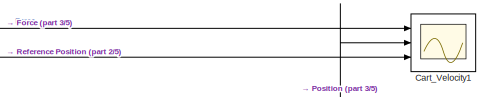
[diagram: root canvas - part 1/5, top right region]
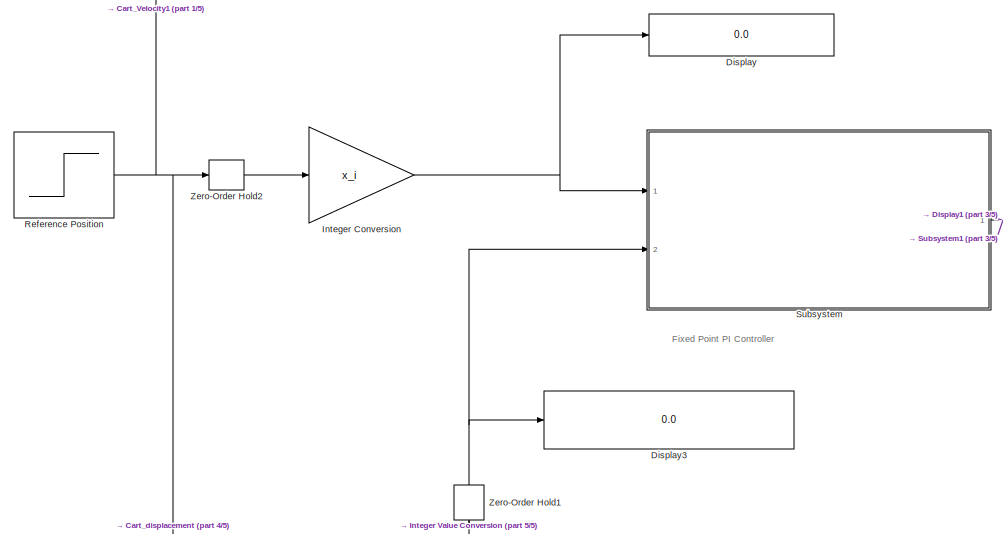
[diagram: root canvas - part 2/5, top left region]
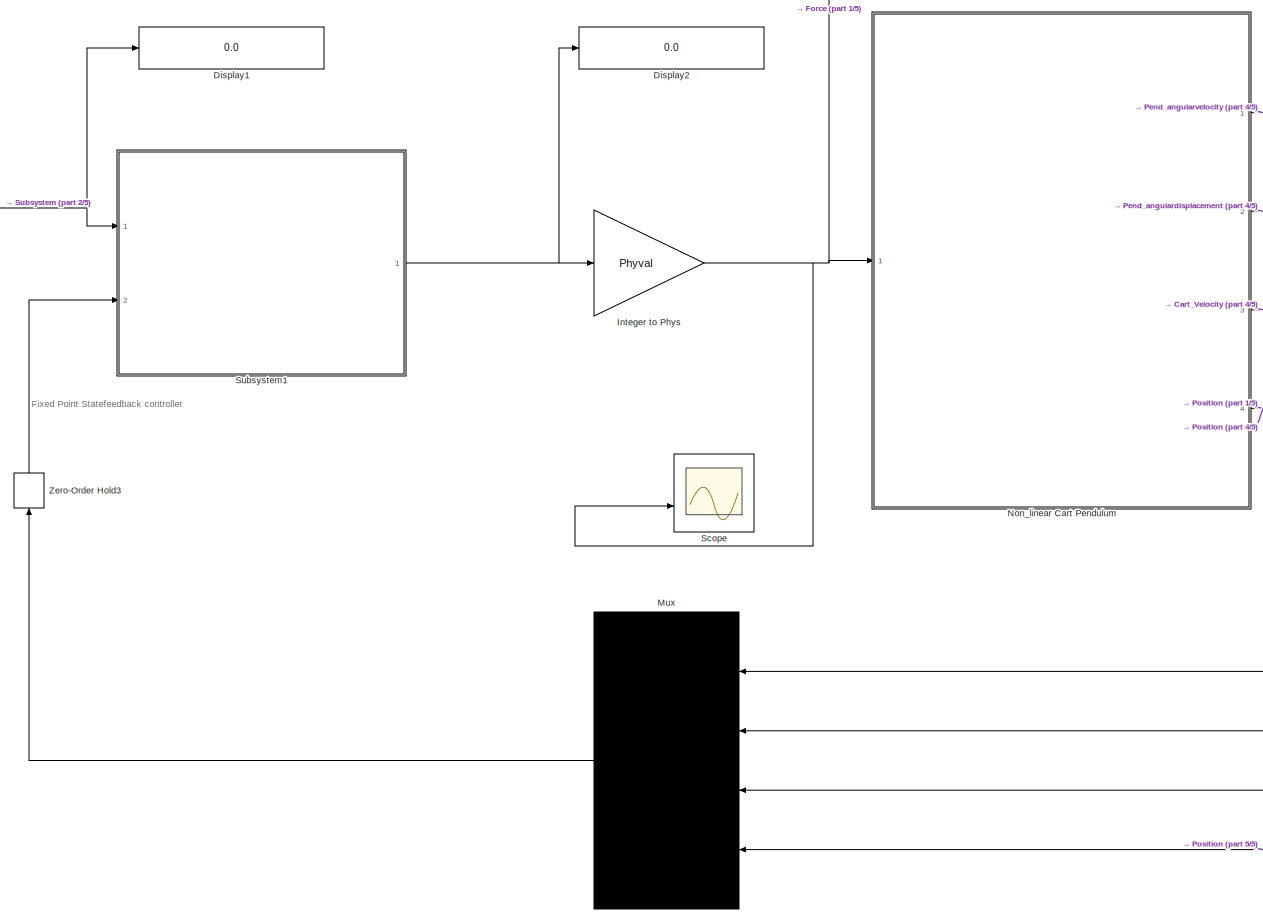
[diagram: root canvas - part 3/5, central region]
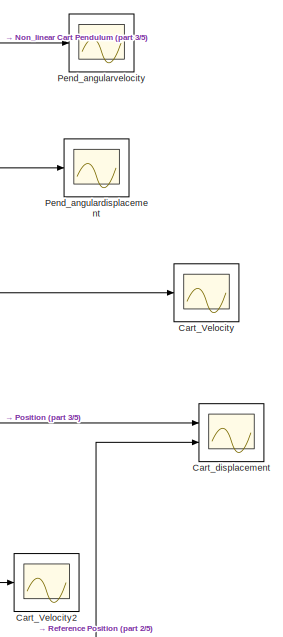
[diagram: root canvas - part 4/5, middle right region]
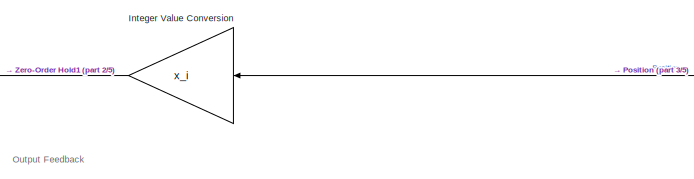
[diagram: root canvas - part 5/5, bottom center region]
MODEL slx_2f15d49a30e4
KIND model
CONFIG AbsTol = auto
CONFIG EnableMultiTasking = off
CONFIG FixedStep = auto
CONFIG MaxStep = 0.01
CONFIG MinStep = auto
CONFIG RelTol = 1e-3
CONFIG SampleTimeConstraint = Unconstrained
CONFIG Solver = VariableStepAuto
CONFIG SolverName = VariableStepAuto
CONFIG StartTime = 0.0
CONFIG StopTime = 30
BLOCK [Scope] Cart_Velocity
  Floating = off
  NumInputPorts = 1
  Ports = [1]
  ScopeSpecificationString = Simulink.scopes.TimeScopeBlockCfg('CurrentConfiguration', extmgr.ConfigurationSet(extmgr.Configuration('Core','General UI',true),extmgr.Configuration('Core','Source UI',true),extmgr.Configuration('Sources','WiredSimulink',true,'DataLoggingVariableName','ScopeData2'),extmgr.Configuration('Visuals','Time Domain',true,'SerializedDisplays',{struct('MinYLimReal','-0.08538','MaxYLimReal','0.70815','YLab...<+1443ch>
BLOCK [Scope] Cart_Velocity1
  Floating = off
  NumInputPorts = 3
  Ports = [3]
  ScopeSpecificationString = Simulink.scopes.TimeScopeBlockCfg('CurrentConfiguration', extmgr.ConfigurationSet(extmgr.Configuration('Core','General UI',true,'FigureColor',[1 1 1]),extmgr.Configuration('Core','Source UI',true),extmgr.Configuration('Sources','WiredSimulink',true,'DataLoggingVariableName','ScopeData1'),extmgr.Configuration('Visuals','Time Domain',true,'SerializedDisplays',{struct('MinYLimReal','0.93901','MaxYLim...<+1906ch>
BLOCK [Scope] Cart_Velocity2
  Floating = off
  NumInputPorts = 1
  Ports = [1]
  ScopeSpecificationString = Simulink.scopes.TimeScopeBlockCfg('CurrentConfiguration', extmgr.ConfigurationSet(extmgr.Configuration('Core','General UI',true),extmgr.Configuration('Core','Source UI',true),extmgr.Configuration('Sources','WiredSimulink',true,'DataLoggingVariableName','ScopeData1'),extmgr.Configuration('Visuals','Time Domain',true,'SerializedDisplays',{struct('MinYLimReal','0.99687','MaxYLimReal','1.01302','YLabe...<+1465ch>
BLOCK [Scope] Cart_displacement
  Floating = off
  NumInputPorts = 2
  Ports = [2]
  ScopeSpecificationString = Simulink.scopes.TimeScopeBlockCfg('CurrentConfiguration', extmgr.ConfigurationSet(extmgr.Configuration('Core','General UI',true,'FigureColor',[1 1 1]),extmgr.Configuration('Core','Source UI',true),extmgr.Configuration('Sources','WiredSimulink',true,'DataLoggingVariableName','ScopeData3'),extmgr.Configuration('Visuals','Time Domain',true,'SerializedDisplays',{struct('MinYLimReal','-0.12529','MaxYLi...<+2018ch>
BLOCK [Display] Display
  Decimation = 1
  Format = long
  Ports = [1]
BLOCK [Display] Display1
  Decimation = 1
  Format = long
  Ports = [1]
BLOCK [Display] Display2
  Decimation = 1
  Ports = [1]
BLOCK [Display] Display3
  Decimation = 1
  Format = long
  Ports = [1]
BLOCK [Gain] Integer Conversion
  Gain = x_i
  OutDataTypeStr = fixdt(1,16,0)
  ParamDataTypeStr = fixdt(1,16,0)
  SaturateOnIntegerOverflow = off
BLOCK [Gain] Integer Value Conversion
  Gain = x_i
  OutDataTypeStr = int16
  ParamDataTypeStr = int16
  SaturateOnIntegerOverflow = off
BLOCK [Gain] Integer to Phys
  Gain = Phyval
  OutDataTypeStr = fixdt(1,32,9)
  ParamDataTypeStr = fixdt(1,32,9)
  SaturateOnIntegerOverflow = off
BLOCK [Mux] Mux
  DisplayOption = signals
  Ports = [4, 1]
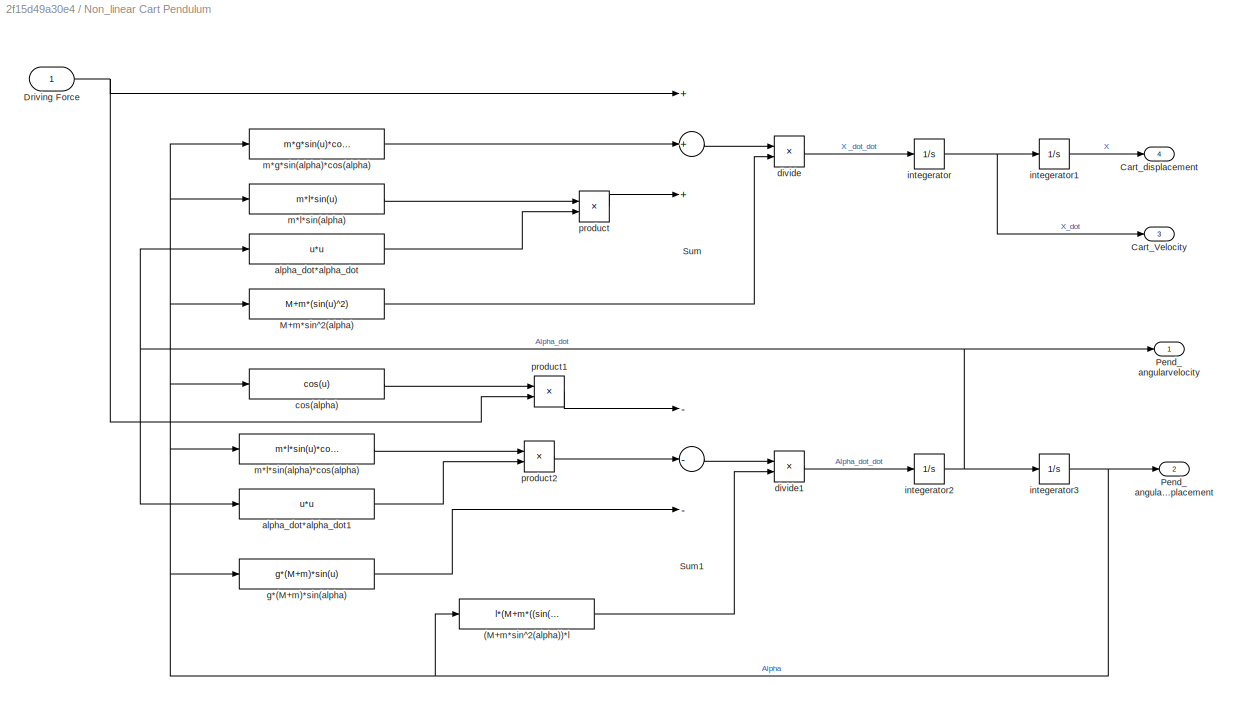
BLOCK [SubSystem] Non_linear Cart Pendulum
  Ports = [1, 4]
  RequestExecContextInheritance = off
BLOCK [Outport] Non_linear Cart Pendulum/                   Pend_angulardisplacement
  IconDisplay = Port number
  Port = 2
BLOCK [Outport] Non_linear Cart Pendulum/                   Pend_angularvelocity
  IconDisplay = Port number
BLOCK [Fcn] Non_linear Cart Pendulum/(M+m*sin^2(alpha))*l
  Expr = l*(M+m*((sin(u))^2))
BLOCK [Outport] Non_linear Cart Pendulum/Cart_Velocity
  IconDisplay = Port number
  Port = 3
BLOCK [Outport] Non_linear Cart Pendulum/Cart_displacement
  IconDisplay = Port number
  Port = 4
BLOCK [Inport] Non_linear Cart Pendulum/Driving Force
  IconDisplay = Port number
BLOCK [Fcn] Non_linear Cart Pendulum/M+m*sin^2(alpha)
  Expr = M+m*(sin(u)^2)
BLOCK [Sum] Non_linear Cart Pendulum/Sum
  InputSameDT = off
  Inputs = +++
  OutDataTypeStr = Inherit: Inherit via internal rule
  Ports = [3, 1]
  SaturateOnIntegerOverflow = off
BLOCK [Sum] Non_linear Cart Pendulum/Sum1
  InputSameDT = off
  Inputs = ---
  OutDataTypeStr = Inherit: Inherit via internal rule
  Ports = [3, 1]
  SaturateOnIntegerOverflow = off
BLOCK [Fcn] Non_linear Cart Pendulum/alpha_dot*alpha_dot
  Expr = u*u
BLOCK [Fcn] Non_linear Cart Pendulum/alpha_dot*alpha_dot1
  Expr = u*u
BLOCK [Fcn] Non_linear Cart Pendulum/cos(alpha)
  Expr = cos(u)
BLOCK [Product] Non_linear Cart Pendulum/divide
  InputSameDT = off
  Inputs = */
  OutDataTypeStr = Inherit: Inherit via internal rule
  Ports = [2, 1]
  RndMeth = Floor
  SaturateOnIntegerOverflow = off
BLOCK [Product] Non_linear Cart Pendulum/divide1
  InputSameDT = off
  Inputs = */
  OutDataTypeStr = Inherit: Inherit via internal rule
  Ports = [2, 1]
  RndMeth = Floor
  SaturateOnIntegerOverflow = off
BLOCK [Fcn] Non_linear Cart Pendulum/g*(M+m)*sin(alpha)
  Expr = g*(M+m)*sin(u)
BLOCK [Integrator] Non_linear Cart Pendulum/integerator
  Ports = [1, 1]
BLOCK [Integrator] Non_linear Cart Pendulum/integerator1
  Ports = [1, 1]
BLOCK [Integrator] Non_linear Cart Pendulum/integerator2
  Ports = [1, 1]
BLOCK [Integrator] Non_linear Cart Pendulum/integerator3
  Ports = [1, 1]
BLOCK [Fcn] Non_linear Cart Pendulum/m*g*sin(alpha)*cos(alpha)
  Expr = m*g*sin(u)*cos(u)
BLOCK [Fcn] Non_linear Cart Pendulum/m*l*sin(alpha)
  Expr = m*l*sin(u)
BLOCK [Fcn] Non_linear Cart Pendulum/m*l*sin(alpha)*cos(alpha)
  Expr = m*l*sin(u)*cos(u)
BLOCK [Product] Non_linear Cart Pendulum/product
  InputSameDT = off
  OutDataTypeStr = Inherit: Inherit via internal rule
  Ports = [2, 1]
  RndMeth = Floor
  SaturateOnIntegerOverflow = off
BLOCK [Product] Non_linear Cart Pendulum/product1
  InputSameDT = off
  OutDataTypeStr = Inherit: Inherit via internal rule
  Ports = [2, 1]
  RndMeth = Floor
  SaturateOnIntegerOverflow = off
BLOCK [Product] Non_linear Cart Pendulum/product2
  InputSameDT = off
  OutDataTypeStr = Inherit: Inherit via internal rule
  Ports = [2, 1]
  RndMeth = Floor
  SaturateOnIntegerOverflow = off
BLOCK [Scope] Pend_angulardisplacement
  Floating = off
  NumInputPorts = 1
  Ports = [1]
  ScopeSpecificationString = Simulink.scopes.TimeScopeBlockCfg('CurrentConfiguration', extmgr.ConfigurationSet(extmgr.Configuration('Core','General UI',true),extmgr.Configuration('Core','Source UI',true),extmgr.Configuration('Sources','WiredSimulink',true,'DataLoggingVariableName','ScopeData1'),extmgr.Configuration('Visuals','Time Domain',true,'SerializedDisplays',{struct('MinYLimReal','-0.1447','MaxYLimReal','0.07544','YLabe...<+1485ch>
BLOCK [Scope] Pend_angularvelocity
  Floating = off
  NumInputPorts = 1
  Ports = [1]
  ScopeSpecificationString = Simulink.scopes.TimeScopeBlockCfg('CurrentConfiguration', extmgr.ConfigurationSet(extmgr.Configuration('Core','General UI',true),extmgr.Configuration('Core','Source UI',true),extmgr.Configuration('Sources','WiredSimulink',true),extmgr.Configuration('Visuals','Time Domain',true,'SerializedDisplays',{struct('MinYLimReal','-0.35129','MaxYLimReal','0.35129','YLabelReal','','MinYLimMag','0.00000','MaxY...<+1412ch>
BLOCK [Step] Reference Position
  SampleTime = 0
BLOCK [Scope] Scope
  Floating = off
  NumInputPorts = 2
  Ports = [2]
  ScopeSpecificationString = Simulink.scopes.TimeScopeBlockCfg('CurrentConfiguration', extmgr.ConfigurationSet(extmgr.Configuration('Core','General UI',true),extmgr.Configuration('Core','Source UI',true),extmgr.Configuration('Sources','WiredSimulink',true,'DataLoggingVariableName','ScopeData9'),extmgr.Configuration('Visuals','Time Domain',true,'SerializedDisplays',{struct('MinYLimReal','-4.04785','MaxYLimReal','12.7002','YLab...<+1447ch>
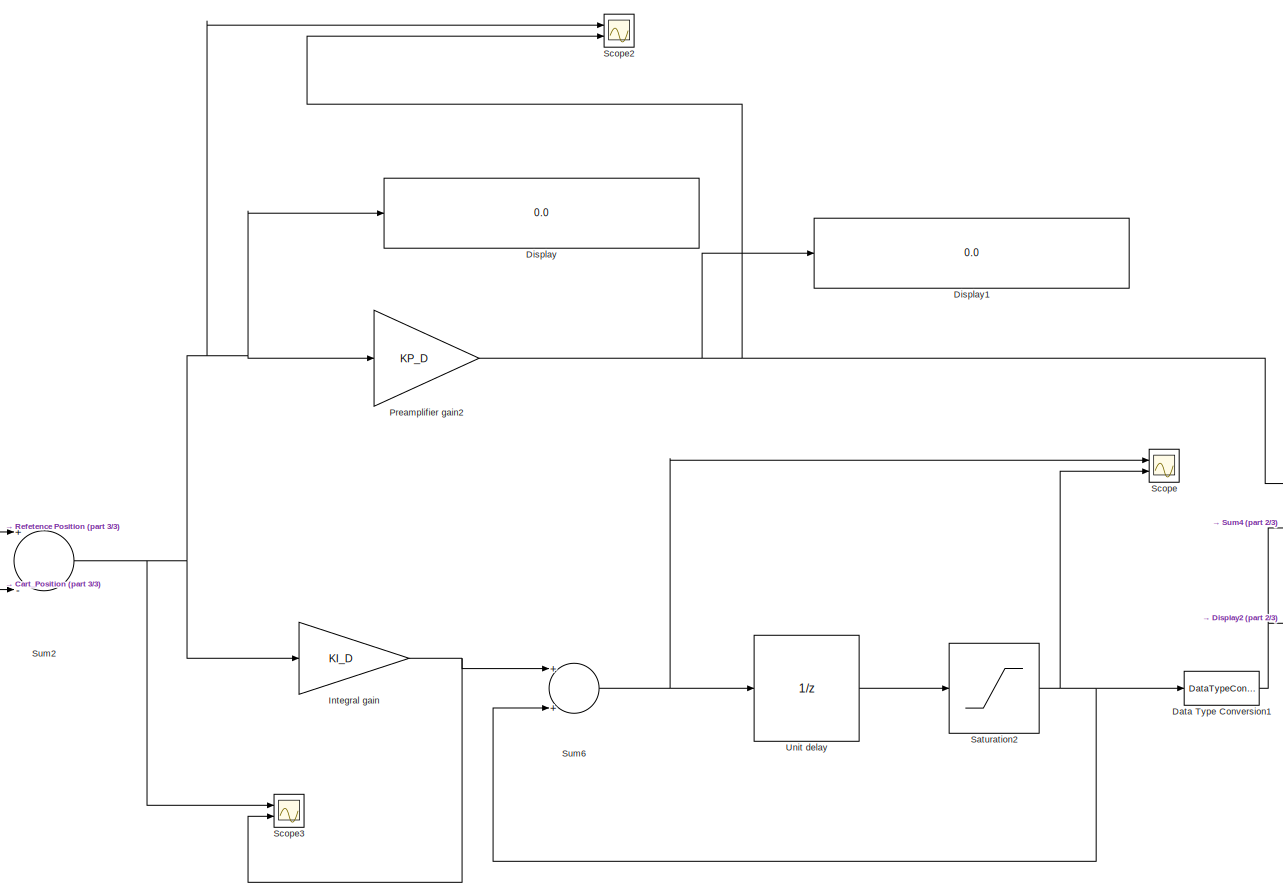
[diagram: Subsystem - part 1/3, center side, full height]
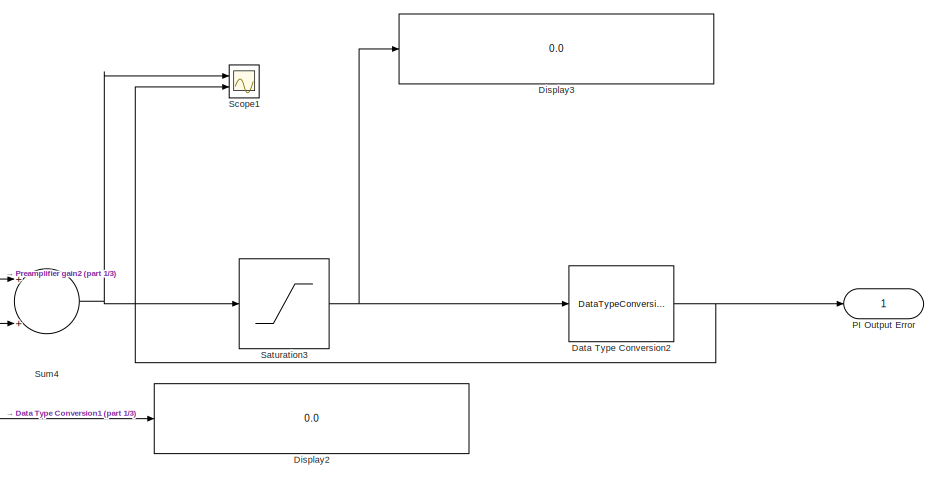
[diagram: Subsystem - part 2/3, middle right region]
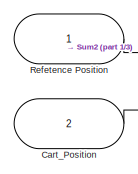
[diagram: Subsystem - part 3/3, middle left region]
BLOCK [SubSystem] Subsystem
  Ports = [2, 1]
  RequestExecContextInheritance = off
BLOCK [Inport] Subsystem/Cart_Position
  IconDisplay = Port number
  Port = 2
BLOCK [DataTypeConversion] Subsystem/Data Type Conversion1
  OutDataTypeStr = fixdt(1,32,14)
  RndMeth = Floor
  SaturateOnIntegerOverflow = off
BLOCK [DataTypeConversion] Subsystem/Data Type Conversion2
  OutDataTypeStr = fixdt(1,32,9)
  RndMeth = Floor
  SaturateOnIntegerOverflow = off
BLOCK [Display] Subsystem/Display
  Decimation = 1
  Format = long_e
  Ports = [1]
BLOCK [Display] Subsystem/Display1
  Decimation = 1
  Format = long_e
  Ports = [1]
BLOCK [Display] Subsystem/Display2
  Decimation = 1
  Format = long_e
  Ports = [1]
BLOCK [Display] Subsystem/Display3
  Decimation = 1
  Format = long_e
  Ports = [1]
BLOCK [Gain] Subsystem/Integral gain
  Gain = KI_D
  OutDataTypeStr = Inherit: Inherit via internal rule
  ParamDataTypeStr = fixdt(1,16,15)
  SaturateOnIntegerOverflow = off
BLOCK [Outport] Subsystem/PI Output Error
  IconDisplay = Port number
BLOCK [Gain] Subsystem/Preamplifier gain2
  Gain = KP_D
  OutDataTypeStr = Inherit: Inherit via internal rule
  ParamDataTypeStr = fixdt(1,16,14)
  SaturateOnIntegerOverflow = off
BLOCK [Inport] Subsystem/Refetence Position
  IconDisplay = Port number
BLOCK [Saturate] Subsystem/Saturation2
  InputPortMap = u0
  LowerLimit = -32768
  Ports = [1, 1]
  UpperLimit = 32768
BLOCK [Saturate] Subsystem/Saturation3
  InputPortMap = u0
  LowerLimit = -16384
  Ports = [1, 1]
  UpperLimit = 16384
BLOCK [Scope] Subsystem/Scope
  Floating = off
  NumInputPorts = 2
  Ports = [2]
  ScopeSpecificationString = Simulink.scopes.TimeScopeBlockCfg('CurrentConfiguration', extmgr.ConfigurationSet(extmgr.Configuration('Core','General UI',true),extmgr.Configuration('Core','Source UI',true),extmgr.Configuration('Sources','WiredSimulink',true,'DataLoggingVariableName','ScopeData2'),extmgr.Configuration('Visuals','Time Domain',true,'SerializedDisplays',{struct('MinYLimReal','-982.3793','MaxYLimReal','8841.41373','...<+1418ch>
BLOCK [Scope] Subsystem/Scope1
  Floating = off
  NumInputPorts = 2
  Ports = [2]
  ScopeSpecificationString = Simulink.scopes.TimeScopeBlockCfg('CurrentConfiguration', extmgr.ConfigurationSet(extmgr.Configuration('Core','General UI',true),extmgr.Configuration('Core','Source UI',true),extmgr.Configuration('Sources','WiredSimulink',true,'DataLoggingVariableName','ScopeData3'),extmgr.Configuration('Visuals','Time Domain',true,'SerializedDisplays',{struct('MinYLimReal','-982.55629','MaxYLimReal','8843.00661',...<+1430ch>
BLOCK [Scope] Subsystem/Scope2
  Floating = off
  NumInputPorts = 2
  Ports = [2]
  ScopeSpecificationString = Simulink.scopes.TimeScopeBlockCfg('CurrentConfiguration', extmgr.ConfigurationSet(extmgr.Configuration('Core','General UI',true),extmgr.Configuration('Core','Source UI',true),extmgr.Configuration('Sources','WiredSimulink',true,'DataLoggingVariableName','ScopeData4'),extmgr.Configuration('Visuals','Time Domain',true,'SerializedDisplays',{struct('MinYLimReal','-3674.125','MaxYLimReal','32207.125','Y...<+1456ch>
BLOCK [Scope] Subsystem/Scope3
  Floating = off
  NumInputPorts = 2
  Ports = [2]
  ScopeSpecificationString = Simulink.scopes.TimeScopeBlockCfg('CurrentConfiguration', extmgr.ConfigurationSet(extmgr.Configuration('Core','General UI',true),extmgr.Configuration('Core','Source UI',true),extmgr.Configuration('Sources','WiredSimulink',true,'DataLoggingVariableName','ScopeData5'),extmgr.Configuration('Visuals','Time Domain',true,'SerializedDisplays',{struct('MinYLimReal','-3674.125','MaxYLimReal','32207.125','Y...<+1451ch>
BLOCK [Sum] Subsystem/Sum2
  InputSameDT = off
  Inputs = +-
  OutDataTypeStr = Inherit: Inherit via internal rule
  Ports = [2, 1]
  SaturateOnIntegerOverflow = off
BLOCK [Sum] Subsystem/Sum4
  InputSameDT = off
  OutDataTypeStr = Inherit: Inherit via internal rule
  Ports = [2, 1]
  SaturateOnIntegerOverflow = off
BLOCK [Sum] Subsystem/Sum6
  AccumDataTypeStr = fixdt(1,50,14)
  InputSameDT = off
  OutDataTypeStr = Inherit: Inherit via internal rule
  Ports = [2, 1]
  SaturateOnIntegerOverflow = off
BLOCK [UnitDelay] Subsystem/Unit delay
  InputProcessing = Elements as channels (sample based)
  SampleTime = Ts
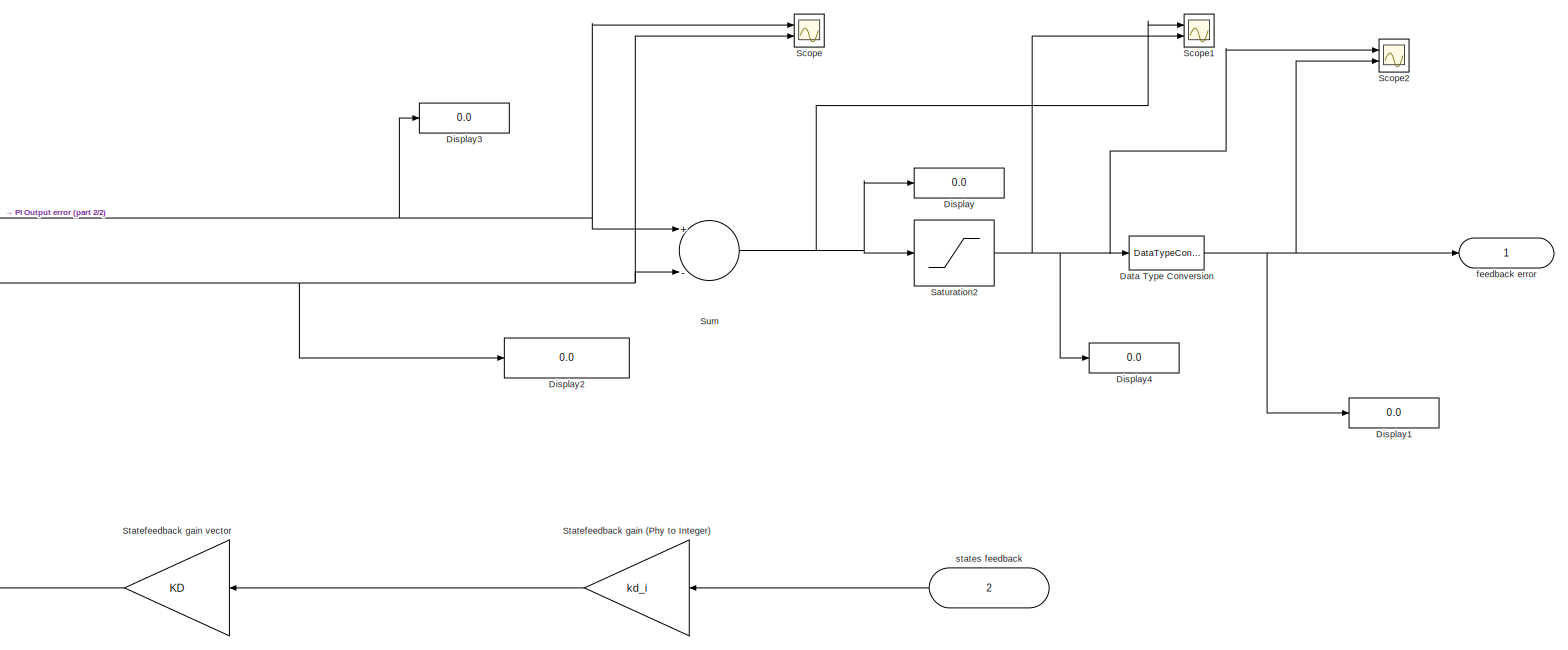
[diagram: Subsystem1 - part 1/2, most of the canvas]
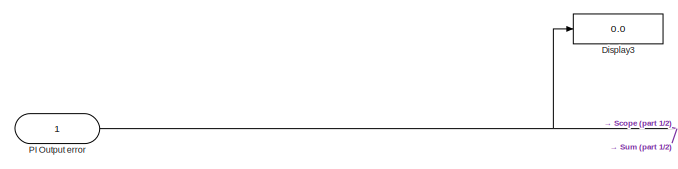
[diagram: Subsystem1 - part 2/2, top left region]
BLOCK [SubSystem] Subsystem1
  Ports = [2, 1]
  RequestExecContextInheritance = off
BLOCK [DataTypeConversion] Subsystem1/Data Type Conversion
  OutDataTypeStr = fixdt(1,32,9)
  RndMeth = Floor
  SaturateOnIntegerOverflow = off
BLOCK [Display] Subsystem1/Display
  Decimation = 1
  Ports = [1]
BLOCK [Display] Subsystem1/Display1
  Decimation = 1
  Ports = [1]
BLOCK [Display] Subsystem1/Display2
  Decimation = 1
  Ports = [1]
BLOCK [Display] Subsystem1/Display3
  Decimation = 1
  Ports = [1]
BLOCK [Display] Subsystem1/Display4
  Decimation = 1
  Ports = [1]
BLOCK [Inport] Subsystem1/PI Output error
  IconDisplay = Port number
BLOCK [Saturate] Subsystem1/Saturation2
  InputPortMap = u0
  LowerLimit = -1048064
  Ports = [1, 1]
  UpperLimit = 1048064
BLOCK [Scope] Subsystem1/Scope
  Floating = off
  NumInputPorts = 2
  Ports = [2]
  ScopeSpecificationString = Simulink.scopes.TimeScopeBlockCfg('CurrentConfiguration', extmgr.ConfigurationSet(extmgr.Configuration('Core','General UI',true),extmgr.Configuration('Core','Source UI',true),extmgr.Configuration('Sources','WiredSimulink',true,'DataLoggingVariableName','ScopeData6'),extmgr.Configuration('Visuals','Time Domain',true,'SerializedDisplays',{struct('MinYLimReal','-1040.50439','MaxYLimReal','9364.53955'...<+1424ch>
BLOCK [Scope] Subsystem1/Scope1
  Floating = off
  NumInputPorts = 2
  Ports = [2]
  ScopeSpecificationString = Simulink.scopes.TimeScopeBlockCfg('CurrentConfiguration', extmgr.ConfigurationSet(extmgr.Configuration('Core','General UI',true),extmgr.Configuration('Core','Source UI',true),extmgr.Configuration('Sources','WiredSimulink',true,'DataLoggingVariableName','ScopeData7'),extmgr.Configuration('Visuals','Time Domain',true,'SerializedDisplays',{struct('MinYLimReal','-64.73901','MaxYLimReal','203.21753','Y...<+1448ch>
BLOCK [Scope] Subsystem1/Scope2
  Floating = off
  NumInputPorts = 2
  Ports = [2]
  ScopeSpecificationString = Simulink.scopes.TimeScopeBlockCfg('CurrentConfiguration', extmgr.ConfigurationSet(extmgr.Configuration('Core','General UI',true),extmgr.Configuration('Core','Source UI',true),extmgr.Configuration('Sources','WiredSimulink',true,'DataLoggingVariableName','ScopeData8'),extmgr.Configuration('Visuals','Time Domain',true,'SerializedDisplays',{struct('MinYLimReal','-64.73901','MaxYLimReal','203.21753','Y...<+1465ch>
BLOCK [Gain] Subsystem1/Statefeedback gain (Phy to Integer)
  Gain = kd_i
  Multiplication = Matrix(K*u) (u vector)
  OutDataTypeStr = int16
  ParamDataTypeStr = int16
  SaturateOnIntegerOverflow = off
BLOCK [Gain] Subsystem1/Statefeedback gain vector
  Gain = KD
  Multiplication = Matrix(K*u) (u vector)
  OutDataTypeStr = Inherit: Inherit via internal rule
  ParamDataTypeStr = fixdt(1,16,9)
  SaturateOnIntegerOverflow = off
BLOCK [Sum] Subsystem1/Sum
  InputSameDT = off
  Inputs = +-
  OutDataTypeStr = Inherit: Inherit via internal rule
  Ports = [2, 1]
  SaturateOnIntegerOverflow = off
BLOCK [Outport] Subsystem1/feedback error
  IconDisplay = Port number
BLOCK [Inport] Subsystem1/states feedback
  IconDisplay = Port number
  Port = 2
BLOCK [ZeroOrderHold] Zero-Order Hold1
  SampleTime = -1
BLOCK [ZeroOrderHold] Zero-Order Hold2
  SampleTime = -1
BLOCK [ZeroOrderHold] Zero-Order Hold3
  SampleTime = -1
ANNOTATION (root): Fixed Point PI Controller
ANNOTATION (root): Fixed Point Statefeedback controlle r
ANNOTATION (root): Output Feedback
NET Integer Conversion:1 -> Display:1, Subsystem:1
LINE Integer Value Conversion:1 -> Zero-Order Hold1:1
NET Integer to Phys:1 -> Cart_Velocity1:1, Non_linear Cart Pendulum:1, Scope:2
LINE Mux:1 -> Zero-Order Hold3:1
LINE Non_linear Cart Pendulum/(M+m*sin^2(alpha))*l:1 -> Non_linear Cart Pendulum/divide1:2
NET Non_linear Cart Pendulum/Driving Force:1 -> Non_linear Cart Pendulum/Sum:1, Non_linear Cart Pendulum/product1:2
LINE Non_linear Cart Pendulum/M+m*sin^2(alpha):1 -> Non_linear Cart Pendulum/divide:2
LINE Non_linear Cart Pendulum/Sum1:1 -> Non_linear Cart Pendulum/divide1:1
LINE Non_linear Cart Pendulum/Sum:1 -> Non_linear Cart Pendulum/divide:1
LINE Non_linear Cart Pendulum/alpha_dot*alpha_dot1:1 -> Non_linear Cart Pendulum/product2:2
LINE Non_linear Cart Pendulum/alpha_dot*alpha_dot:1 -> Non_linear Cart Pendulum/product:2
LINE Non_linear Cart Pendulum/cos(alpha):1 -> Non_linear Cart Pendulum/product1:1
LINE Non_linear Cart Pendulum/divide1:1 -> Non_linear Cart Pendulum/integerator2:1
LINE Non_linear Cart Pendulum/divide:1 -> Non_linear Cart Pendulum/integerator:1
LINE Non_linear Cart Pendulum/g*(M+m)*sin(alpha):1 -> Non_linear Cart Pendulum/Sum1:3
LINE Non_linear Cart Pendulum/integerator1:1 -> Non_linear Cart Pendulum/Cart_displacement:1
NET Non_linear Cart Pendulum/integerator2:1 -> Non_linear Cart Pendulum/                   Pend_angularvelocity:1, Non_linear Cart Pendulum/alpha_dot*alpha_dot1:1, Non_linear Cart Pendulum/alpha_dot*alpha_dot:1, Non_linear Cart Pendulum/integerator3:1
NET Non_linear Cart Pendulum/integerator3:1 -> Non_linear Cart Pendulum/                   Pend_angulardisplacement:1, Non_linear Cart Pendulum/(M+m*sin^2(alpha))*l:1, Non_linear Cart Pendulum/M+m*sin^2(alpha):1, Non_linear Cart Pendulum/cos(alpha):1, Non_linear Cart Pendulum/g*(M+m)*sin(alpha):1, Non_linear Cart Pendulum/m*g*sin(alpha)*cos(alpha):1, Non_linear Cart Pendulum/m*l*sin(alpha)*cos(alpha):1, Non_linear Cart Pendulum/m*l*sin(alpha):1
NET Non_linear Cart Pendulum/integerator:1 -> Non_linear Cart Pendulum/Cart_Velocity:1, Non_linear Cart Pendulum/integerator1:1
LINE Non_linear Cart Pendulum/m*g*sin(alpha)*cos(alpha):1 -> Non_linear Cart Pendulum/Sum:2
LINE Non_linear Cart Pendulum/m*l*sin(alpha)*cos(alpha):1 -> Non_linear Cart Pendulum/product2:1
LINE Non_linear Cart Pendulum/m*l*sin(alpha):1 -> Non_linear Cart Pendulum/product:1
LINE Non_linear Cart Pendulum/product1:1 -> Non_linear Cart Pendulum/Sum1:1
LINE Non_linear Cart Pendulum/product2:1 -> Non_linear Cart Pendulum/Sum1:2
LINE Non_linear Cart Pendulum/product:1 -> Non_linear Cart Pendulum/Sum:3
NET Non_linear Cart Pendulum:1 -> Mux:1, Pend_angularvelocity:1
NET Non_linear Cart Pendulum:2 -> Mux:2, Pend_angulardisplacement:1
NET Non_linear Cart Pendulum:3 -> Cart_Velocity:1, Mux:3
NET Non_linear Cart Pendulum:4 -> Cart_Velocity1:2, Cart_Velocity2:1, Cart_displacement:1, Integer Value Conversion:1, Mux:4
NET Reference Position:1 -> Cart_Velocity1:3, Cart_displacement:2, Zero-Order Hold2:1
LINE Subsystem/Cart_Position:1 -> Subsystem/Sum2:2
NET Subsystem/Data Type Conversion1:1 -> Subsystem/Display2:1, Subsystem/Sum4:2
NET Subsystem/Data Type Conversion2:1 -> Subsystem/PI Output Error:1, Subsystem/Scope1:2
NET Subsystem/Integral gain:1 -> Subsystem/Scope3:2, Subsystem/Sum6:1
NET Subsystem/Preamplifier gain2:1 -> Subsystem/Display1:1, Subsystem/Scope2:2, Subsystem/Sum4:1
LINE Subsystem/Refetence Position:1 -> Subsystem/Sum2:1
NET Subsystem/Saturation2:1 -> Subsystem/Data Type Conversion1:1, Subsystem/Scope:2, Subsystem/Sum6:2
NET Subsystem/Saturation3:1 -> Subsystem/Data Type Conversion2:1, Subsystem/Display3:1
NET Subsystem/Sum2:1 -> Subsystem/Display:1, Subsystem/Integral gain:1, Subsystem/Preamplifier gain2:1, Subsystem/Scope2:1, Subsystem/Scope3:1
NET Subsystem/Sum4:1 -> Subsystem/Saturation3:1, Subsystem/Scope1:1
NET Subsystem/Sum6:1 -> Subsystem/Scope:1, Subsystem/Unit delay:1
LINE Subsystem/Unit delay:1 -> Subsystem/Saturation2:1
NET Subsystem1/Data Type Conversion:1 -> Subsystem1/Display1:1, Subsystem1/Scope2:2, Subsystem1/feedback error:1
NET Subsystem1/PI Output error:1 -> Subsystem1/Display3:1, Subsystem1/Scope:1, Subsystem1/Sum:1
NET Subsystem1/Saturation2:1 -> Subsystem1/Data Type Conversion:1, Subsystem1/Display4:1, Subsystem1/Scope1:2, Subsystem1/Scope2:1
LINE Subsystem1/Statefeedback gain (Phy to Integer):1 -> Subsystem1/Statefeedback gain vector:1
NET Subsystem1/Statefeedback gain vector:1 -> Subsystem1/Display2:1, Subsystem1/Scope:2, Subsystem1/Sum:2
NET Subsystem1/Sum:1 -> Subsystem1/Display:1, Subsystem1/Saturation2:1, Subsystem1/Scope1:1
LINE Subsystem1/states feedback:1 -> Subsystem1/Statefeedback gain (Phy to Integer):1
NET Subsystem1:1 -> Display2:1, Integer to Phys:1
NET Subsystem:1 -> Display1:1, Subsystem1:1
NET Zero-Order Hold1:1 -> Display3:1, Subsystem:2
LINE Zero-Order Hold2:1 -> Integer Conversion:1
LINE Zero-Order Hold3:1 -> Subsystem1:2
note: NET lines group one-source signal fan-out (src -> all destinations, sorted); 1:1 wires keep LINE
